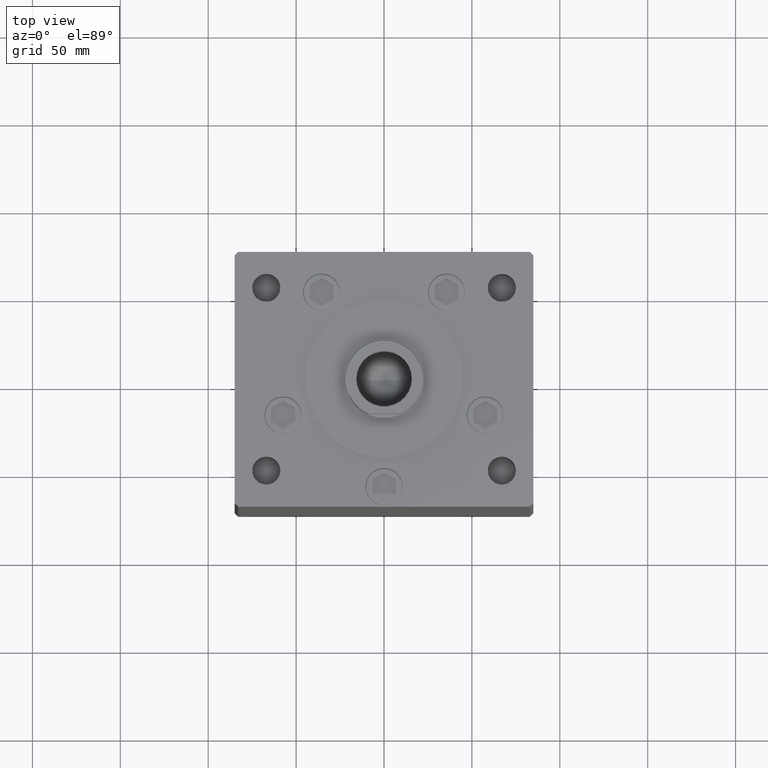
[diagram: clean part render]
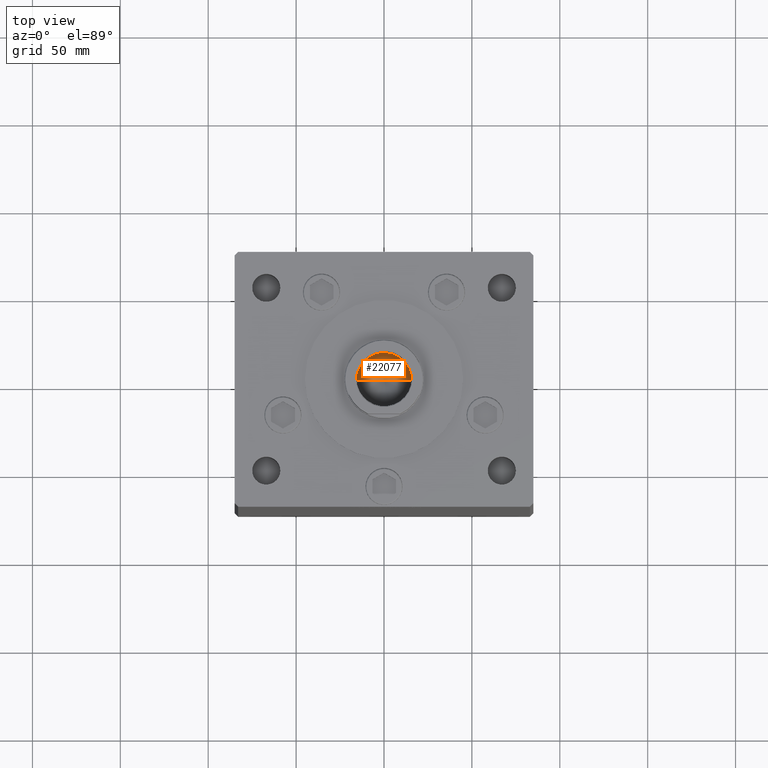
[diagram: same view with one face highlighted and labeled with its STEP entity id]
A machine part, top view. The second image highlights one B-rep face of the part: STEP entity #22077.
In plain terms, the highlighted conical surface has half-angle 59 deg.
Its self-contained STEP definition (entity closure, byte-faithful):
#2124 = FACE_OUTER_BOUND ( 'NONE', #39112, .T. ) ;
#5932 = LINE ( 'NONE', #30969, #22986 ) ;
#8959 = CONICAL_SURFACE ( 'NONE', #38425, 15.74999999999998934, 1.029744258676653645 ) ;
#9440 = VECTOR ( 'NONE', #47845, 1000.000000000000000 ) ;
#10422 = AXIS2_PLACEMENT_3D ( 'NONE', #12104, #28190, #29486 ) ;
#10801 = DIRECTION ( 'NONE',  ( 1.000000000000000000, 0.000000000000000000, 0.000000000000000000 ) ) ;
#11048 = DIRECTION ( 'NONE',  ( -0.000000000000000000, -0.000000000000000000, 1.000000000000000000 ) ) ;
#11152 = ORIENTED_EDGE ( 'NONE', *, *, #40223, .F. ) ;
#11997 = CARTESIAN_POINT ( 'NONE',  ( -15.74999999999998934, 1.928818708657080161E-15, 258.0000000000000000 ) ) ;
#12104 = CARTESIAN_POINT ( 'NONE',  ( 0.000000000000000000, 0.000000000000000000, 258.0000000000000000 ) ) ;
#19656 = CARTESIAN_POINT ( 'NONE',  ( -1.480675244360640996E-14, 0.000000000000000000, 248.5364452503159214 ) ) ;
#21687 = VERTEX_POINT ( 'NONE', #26419 ) ;
#22077 = ADVANCED_FACE ( 'NONE', ( #2124 ), #8959, .F. ) ;
#22986 = VECTOR ( 'NONE', #38612, 1000.000000000000000 ) ;
#23667 = ORIENTED_EDGE ( 'NONE', *, *, #38930, .T. ) ;
#26419 = CARTESIAN_POINT ( 'NONE',  ( -15.74999999999998934, 1.928818708657080161E-15, 258.0000000000000000 ) ) ;
#28190 = DIRECTION ( 'NONE',  ( -0.000000000000000000, -0.000000000000000000, 1.000000000000000000 ) ) ;
#29486 = DIRECTION ( 'NONE',  ( 1.000000000000000000, 0.000000000000000000, 0.000000000000000000 ) ) ;
#30969 = CARTESIAN_POINT ( 'NONE',  ( 15.74999999999998934, 0.000000000000000000, 258.0000000000000000 ) ) ;
#33981 = CIRCLE ( 'NONE', #10422, 15.74999999999998934 ) ;
#38425 = AXIS2_PLACEMENT_3D ( 'NONE', #50863, #11048, #10801 ) ;
#38612 = DIRECTION ( 'NONE',  ( 0.8571673007021118895, 0.000000000000000000, 0.5150380749100549327 ) ) ;
#38930 = EDGE_CURVE ( 'NONE', #41235, #46210, #5932, .T. ) ;
#39112 = EDGE_LOOP ( 'NONE', ( #11152, #23667, #44110 ) ) ;
#40223 = EDGE_CURVE ( 'NONE', #41235, #21687, #44682, .T. ) ;
#41106 = CARTESIAN_POINT ( 'NONE',  ( 15.74999999999998934, 0.000000000000000000, 258.0000000000000000 ) ) ;
#41235 = VERTEX_POINT ( 'NONE', #19656 ) ;
#44110 = ORIENTED_EDGE ( 'NONE', *, *, #44523, .T. ) ;
#44523 = EDGE_CURVE ( 'NONE', #46210, #21687, #33981, .T. ) ;
#44682 = LINE ( 'NONE', #11997, #9440 ) ;
#46210 = VERTEX_POINT ( 'NONE', #41106 ) ;
#47845 = DIRECTION ( 'NONE',  ( -0.8571673007021118895, 1.049727191138618079E-16, 0.5150380749100549327 ) ) ;
#50863 = CARTESIAN_POINT ( 'NONE',  ( 0.000000000000000000, 0.000000000000000000, 258.0000000000000000 ) ) ;